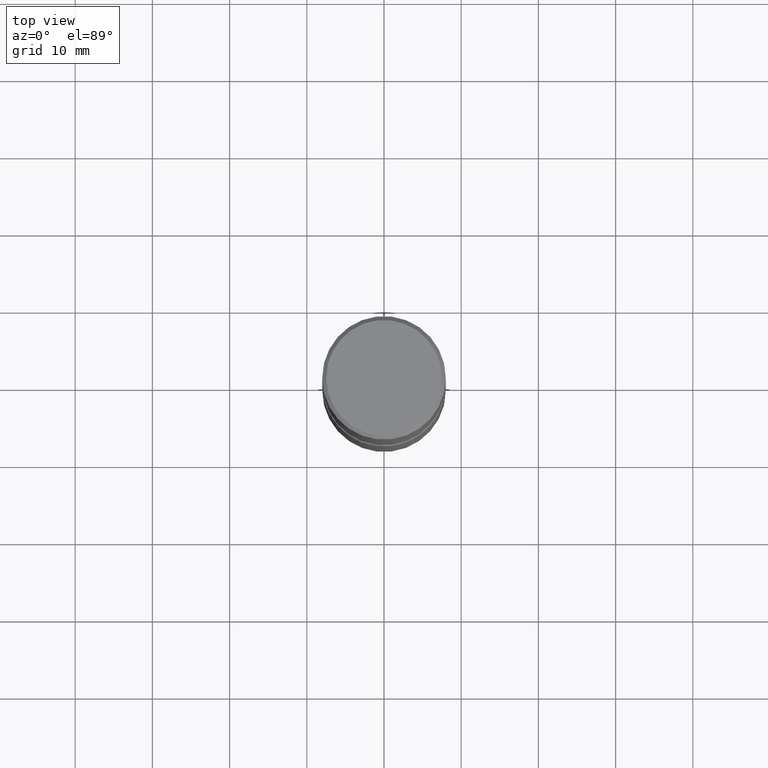
[diagram: clean part render]
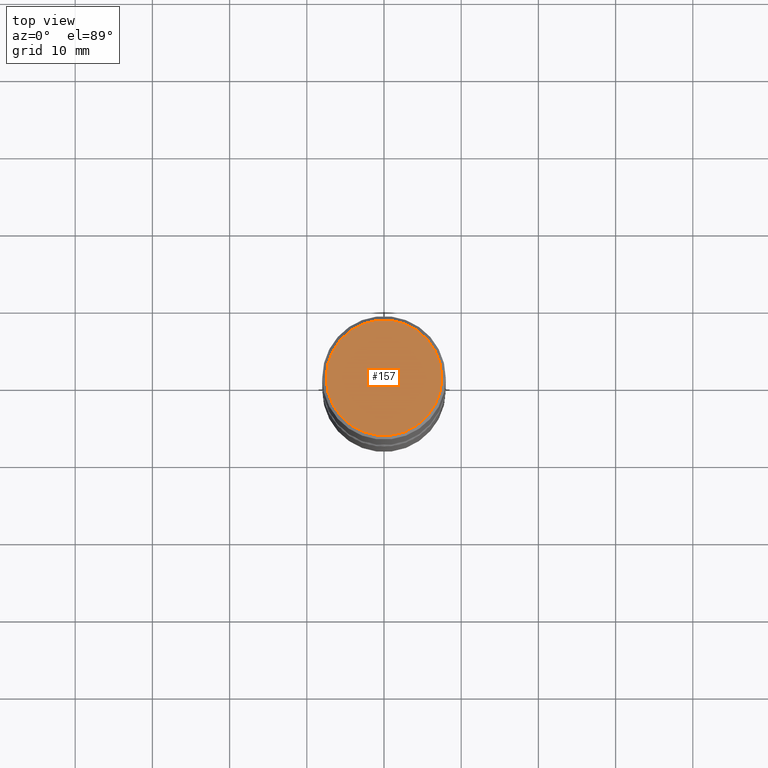
[diagram: same view with one face highlighted and labeled with its STEP entity id]
A machine part, top view. The second image highlights one B-rep face of the part: STEP entity #157.
In plain terms, the highlighted planar face has unit normal (0, -0, -1).
Its self-contained STEP definition (entity closure, byte-faithful):
#19 = DIRECTION ( 'NONE',  ( 1.000000000000000000, -6.982962677686267499E-15, 4.876053491004737710E-29 ) ) ;
#49 = DIRECTION ( 'NONE',  ( -1.000000000000000000, 6.982962677686265922E-15, -4.876176775795935793E-29 ) ) ;
#93 = AXIS2_PLACEMENT_3D ( 'NONE', #196, #243, #49 ) ;
#128 = DIRECTION ( 'NONE',  ( -2.445468806185136597E-29, 3.491481338843145583E-15, 1.000000000000000000 ) ) ;
#143 = CARTESIAN_POINT ( 'NONE',  ( -0.2949499999999998234, 2.094539655171994135E-15, 1.280553747028670770E-17 ) ) ;
#157 = ADVANCED_FACE ( 'NONE', ( #296 ), #177, .F. ) ;
#170 = DIRECTION ( 'NONE',  ( 1.000000000000000000, -6.982962677686267499E-15, 4.876053491004737710E-29 ) ) ;
#177 = PLANE ( 'NONE',  #93 ) ;
#196 = CARTESIAN_POINT ( 'NONE',  ( 2.059624841783562880E-15, 0.2949499999999998234, -1.023409652156634547E-15 ) ) ;
#242 = CARTESIAN_POINT ( 'NONE',  ( -3.131554243005659264E-46, 4.471029511141341874E-32, 1.280553747030123384E-17 ) ) ;
#243 = DIRECTION ( 'NONE',  ( 2.438088387897960049E-29, -3.491481338843145188E-15, -1.000000000000000000 ) ) ;
#250 = EDGE_LOOP ( 'NONE', ( #292, #311 ) ) ;
#251 = DIRECTION ( 'NONE',  ( -2.445468806185136597E-29, 3.491481338843145583E-15, 1.000000000000000000 ) ) ;
#292 = ORIENTED_EDGE ( 'NONE', *, *, #347, .T. ) ;
#296 = FACE_OUTER_BOUND ( 'NONE', #250, .T. ) ;
#305 = CIRCLE ( 'NONE', #503, 0.2949499999999998234 ) ;
#311 = ORIENTED_EDGE ( 'NONE', *, *, #351, .T. ) ;
#312 = CIRCLE ( 'NONE', #332, 0.2949499999999998234 ) ;
#328 = VERTEX_POINT ( 'NONE', #344 ) ;
#332 = AXIS2_PLACEMENT_3D ( 'NONE', #482, #128, #19 ) ;
#344 = CARTESIAN_POINT ( 'NONE',  ( 0.2949499999999998234, -2.127023677808859286E-15, 1.280553747031587399E-17 ) ) ;
#347 = EDGE_CURVE ( 'NONE', #348, #328, #312, .T. ) ;
#348 = VERTEX_POINT ( 'NONE', #143 ) ;
#351 = EDGE_CURVE ( 'NONE', #328, #348, #305, .T. ) ;
#482 = CARTESIAN_POINT ( 'NONE',  ( -3.131554243005659264E-46, 4.471029511141341874E-32, 1.280553747030123384E-17 ) ) ;
#503 = AXIS2_PLACEMENT_3D ( 'NONE', #242, #251, #170 ) ;